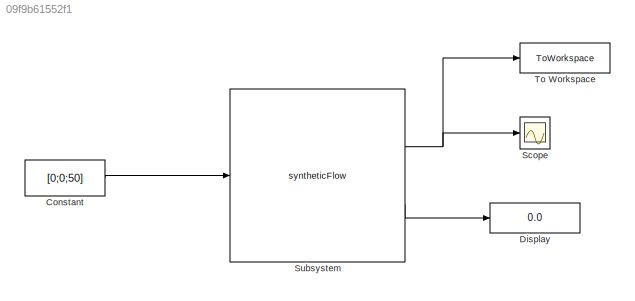
MODEL slx_09f9b61552f1
KIND model
CONFIG AbsTol = auto
CONFIG EnableMultiTasking = off
CONFIG FixedStep = auto
CONFIG MaxStep = auto
CONFIG MinStep = auto
CONFIG RelTol = 1e-3
CONFIG SampleTimeConstraint = Unconstrained
CONFIG SolverName = FixedStepAuto
CONFIG StartTime = 0.0
CONFIG StopTime = env.water.tFinData.Value
BLOCK [Constant] Constant
  Value = [0;0;50]
BLOCK [Display] Display
  Decimation = 1
  Ports = [1]
BLOCK [Scope] Scope
  Floating = off
  NumInputPorts = 1
  Ports = [1]
  ScopeSpecificationString = Simulink.scopes.TimeScopeBlockCfg('CurrentConfiguration', extmgr.ConfigurationSet(extmgr.Configuration('Core','General UI',true),extmgr.Configuration('Core','Source UI',true),extmgr.Configuration('Sources','WiredSimulink',true),extmgr.Configuration('Visuals','Time Domain',true,'SerializedDisplays',{struct('MinYLimReal','-0.31511','MaxYLimReal','2.83602','YLabelReal','','MinYLimMag','0.00000','MaxY...<+1365ch>
BLOCK [Reference] Subsystem  REF=syntheticFlow_ul/syntheticFlow
  Ports = [1, 2]
  SourceBlock = syntheticFlow_ul/syntheticFlow
BLOCK [ToWorkspace] To Workspace
  FixptAsFi = on
  MaxDataPoints = inf
  Ports = [1]
  SampleTime = -1
  SaveFormat = Timeseries
  VariableName = simValOut
LINE Constant:1 -> Subsystem:1
NET Subsystem:1 -> Scope:1, To Workspace:1
LINE Subsystem:2 -> Display:1
note: NET lines group one-source signal fan-out (src -> all destinations, sorted); 1:1 wires keep LINE
